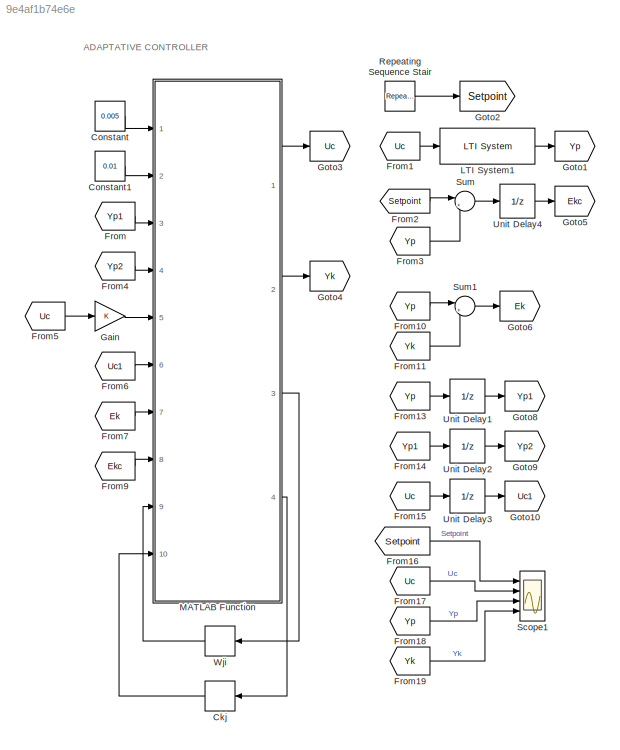
MODEL slx_9e4af1b74e6e
KIND model
CONFIG AbsTol = auto
CONFIG EnableMultiTasking = off
CONFIG FixedStep = 0.01
CONFIG MaxStep = auto
CONFIG MinStep = auto
CONFIG RelTol = 0.1e-3
CONFIG SampleTimeConstraint = Unconstrained
CONFIG Solver = FixedStepAuto
CONFIG SolverName = FixedStepAuto
CONFIG StartTime = 0.0
CONFIG StopTime = 600
BLOCK [Memory] Ckj
  InitialCondition = rand(1,10)
  NameLocation = top
BLOCK [Constant] Constant
  Value = 0.005
BLOCK [Constant] Constant1
  Value = 0.01
BLOCK [From] From
  GotoTag = Yp1
BLOCK [From] From1
  GotoTag = Uc
BLOCK [From] From10
  GotoTag = Yp
BLOCK [From] From11
  GotoTag = Yk
BLOCK [From] From13
  GotoTag = Yp
BLOCK [From] From14
  GotoTag = Yp1
BLOCK [From] From15
  GotoTag = Uc
BLOCK [From] From16
  GotoTag = Setpoint
BLOCK [From] From17
  GotoTag = Uc
BLOCK [From] From18
  GotoTag = Yp
BLOCK [From] From19
  GotoTag = Yk
BLOCK [From] From2
  GotoTag = Setpoint
BLOCK [From] From3
  GotoTag = Yp
BLOCK [From] From4
  GotoTag = Yp2
BLOCK [From] From5
  GotoTag = Uc
BLOCK [From] From6
  GotoTag = Uc1
BLOCK [From] From7
  GotoTag = Ek
BLOCK [From] From9
  GotoTag = Ekc
BLOCK [Gain] Gain
BLOCK [Goto] Goto1
  GotoTag = Yp
BLOCK [Goto] Goto10
  GotoTag = Uc1
BLOCK [Goto] Goto2
  GotoTag = Setpoint
BLOCK [Goto] Goto3
  GotoTag = Uc
BLOCK [Goto] Goto4
  GotoTag = Yk
BLOCK [Goto] Goto5
  GotoTag = Ekc
BLOCK [Goto] Goto6
  GotoTag = Ek
BLOCK [Goto] Goto8
  GotoTag = Yp1
BLOCK [Goto] Goto9
  GotoTag = Yp2
BLOCK [Reference] LTI System1  REF=cstblocks/LTI System
  Ports = [1, 1]
  SourceBlock = cstblocks/LTI System
  SourceProductBaseCode = CT
  SourceType = LTI Block
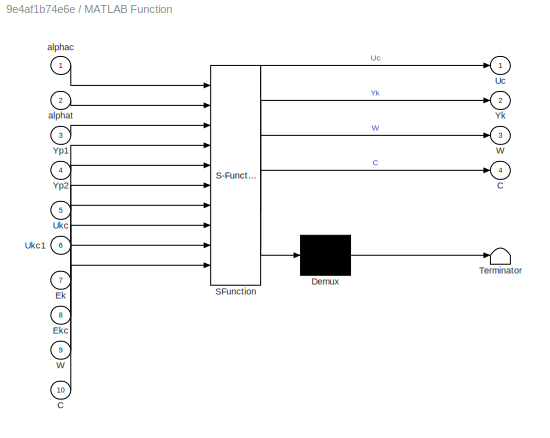
BLOCK [SubSystem] MATLAB Function
  ErrorFcn = Stateflow.Translate.translate
  PermitHierarchicalResolution = ExplicitOnly
  Ports = [10, 4]
  RequestExecContextInheritance = off
  SFBlockType = MATLAB Function
  TreatAsAtomicUnit = on
BLOCK [Demux] MATLAB Function/ Demux 
  Outputs = 1
  Ports = [1, 1]
BLOCK [S-Function] MATLAB Function/ SFunction 
  EnableBusSupport = on
  FunctionName = sf_sfun
  PortCounts = [10 5]
  Ports = [10, 5]
  SFcnIsStateOwnerBlock = off
  SFunctionDeploymentMode = off
  Tag = Stateflow S-Function 2
BLOCK [Terminator] MATLAB Function/ Terminator 
BLOCK [Outport] MATLAB Function/C
  Port = 4
BLOCK [Inport] MATLAB Function/C 
  Port = 10
BLOCK [Inport] MATLAB Function/Ek
  Port = 7
BLOCK [Inport] MATLAB Function/Ekc
  Port = 8
BLOCK [Outport] MATLAB Function/Uc
BLOCK [Inport] MATLAB Function/Ukc
  Port = 5
BLOCK [Inport] MATLAB Function/Ukc1
  Port = 6
BLOCK [Outport] MATLAB Function/W
  Port = 3
BLOCK [Inport] MATLAB Function/W 
  Port = 9
BLOCK [Outport] MATLAB Function/Yk
  Port = 2
BLOCK [Inport] MATLAB Function/Yp1
  Port = 3
BLOCK [Inport] MATLAB Function/Yp2
  Port = 4
BLOCK [Inport] MATLAB Function/alphac
BLOCK [Inport] MATLAB Function/alphat
  Port = 2
BLOCK [Reference] Repeating Sequence Stair  REF=simulink/Sources/Repeating
Sequence
Stair
  Ports = [0, 1]
  SourceBlock = simulink/Sources/Repeating\nSequence\nStair
  SourceProductBaseCode = SL
  SourceType = Repeating Sequence Stair
BLOCK [Scope] Scope1
  Floating = off
  NumInputPorts = 4
  Ports = [4]
  ScopeSpecificationString = Simulink.scopes.TimeScopeBlockCfg('CurrentConfiguration', extmgr.ConfigurationSet(extmgr.Configuration('Core','General UI',true,'FigureColor',[1 1 1]),extmgr.Configuration('Core','Source UI',true),extmgr.Configuration('Sources','WiredSimulink',true,'DataLoggingVariableName','ScopeData1'),extmgr.Configuration('Visuals','Time Domain',true,'SerializedDisplays',{struct('MinYLimReal','-0.20851','MaxYLi...<+1850ch>
BLOCK [Sum] Sum
  Inputs = |+-
  Ports = [2, 1]
BLOCK [Sum] Sum1
  Inputs = |+-
  Ports = [2, 1]
BLOCK [UnitDelay] Unit Delay1
  HasFrameUpgradeWarning = on
  SampleTime = -1
BLOCK [UnitDelay] Unit Delay2
  HasFrameUpgradeWarning = on
  SampleTime = -1
BLOCK [UnitDelay] Unit Delay3
  HasFrameUpgradeWarning = on
  SampleTime = -1
BLOCK [UnitDelay] Unit Delay4
  HasFrameUpgradeWarning = on
  SampleTime = -1
BLOCK [Memory] Wji
  InitialCondition = rand(10,3)
  NameLocation = top
ANNOTATION (root): ADAPTATIVE CONTROLLER
LINE Ckj:1 -> MATLAB Function:10
LINE Constant1:1 -> MATLAB Function:2
LINE Constant:1 -> MATLAB Function:1
LINE From10:1 -> Sum1:1
LINE From11:1 -> Sum1:2
LINE From13:1 -> Unit Delay1:1
LINE From14:1 -> Unit Delay2:1
LINE From15:1 -> Unit Delay3:1
LINE From16:1 -> Scope1:1
LINE From17:1 -> Scope1:2
LINE From18:1 -> Scope1:3
LINE From19:1 -> Scope1:4
LINE From1:1 -> LTI System1:1
LINE From2:1 -> Sum:1
LINE From3:1 -> Sum:2
LINE From4:1 -> MATLAB Function:4
LINE From5:1 -> Gain:1
LINE From6:1 -> MATLAB Function:6
LINE From7:1 -> MATLAB Function:7
LINE From9:1 -> MATLAB Function:8
LINE From:1 -> MATLAB Function:3
LINE Gain:1 -> MATLAB Function:5
LINE LTI System1:1 -> Goto1:1
LINE MATLAB Function:1 -> Goto3:1
LINE MATLAB Function:2 -> Goto4:1
LINE MATLAB Function:3 -> Wji:1
LINE MATLAB Function:4 -> Ckj:1
LINE Repeating Sequence Stair:1 -> Goto2:1
LINE Sum1:1 -> Goto6:1
LINE Sum:1 -> Unit Delay4:1
LINE Unit Delay1:1 -> Goto8:1
LINE Unit Delay2:1 -> Goto9:1
LINE Unit Delay3:1 -> Goto10:1
LINE Unit Delay4:1 -> Goto5:1
LINE Wji:1 -> MATLAB Function:9
CHART MATLAB Function states=1 transitions=1
  STATE_LABEL 'eML_blk_kernel()'
  STATE_LABEL 'SCRIPT:\nfunction [Uc, Yk, W, C] = fcn(alphac, alphat, Yp1, Yp2, Ukc, Ukc1, Ek, Ekc, W, C)\n    %{\n        This is a function that calculate the non-parametric identification \n        of a system and then get the right control signal to manipulate\n        the system behavior (Adaptative controller).\n\n        :param alphat: The learning power of the non-parametric identification\n                     ...<+983ch>'
CHART  states=0 transitions=0
